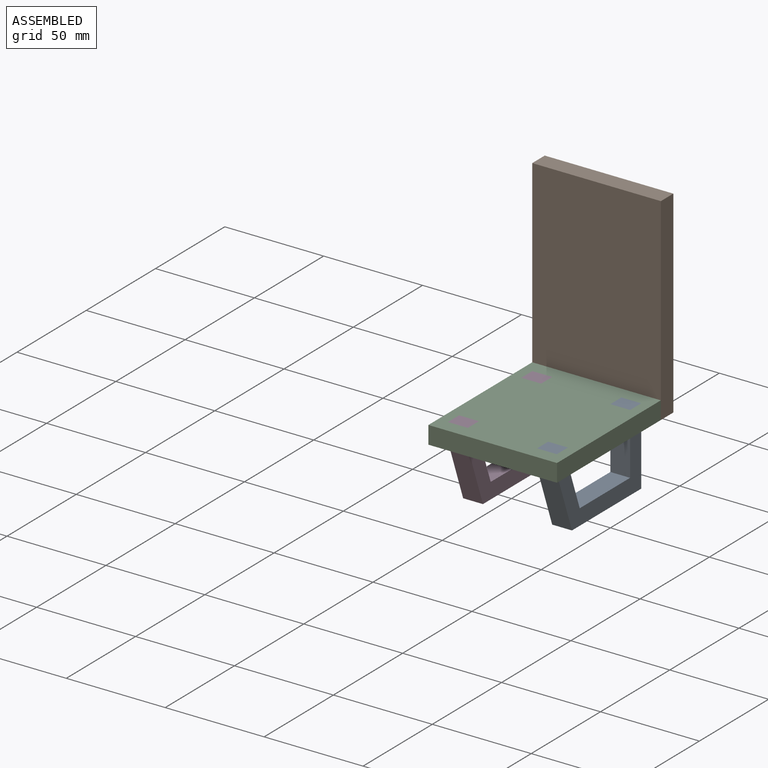
[diagram: assembled view]
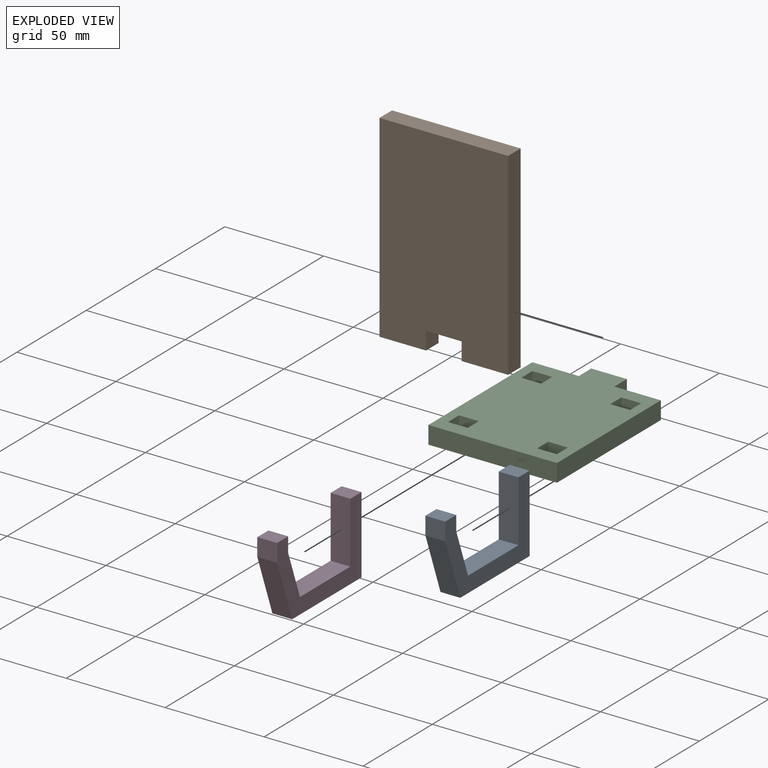
[diagram: exploded view]
GUIDED TOUR — MATED ASSEMBLY (Onshape document 2998f35b9160b1eeeda3995d, AutoMate assembly 2998f35b9160b1eeeda3995d_2a96d878df0ba6bce4009664_ebf144e67953d812271a2c66_default)

This assembly has 4 components, labeled P0..P3 below (a component is one placed occurrence of a part; the same part can appear more than once), held together by 3 mates. A mate is a constraint between two components; its type names the relative motion it leaves free:
  FASTENED — locks the two components together rigidly (no relative motion).
Axis/direction vectors are unit vectors and 'through' points are millimeter coordinates, both in the assembly's world frame.

MATES
  1. FASTENED "Fastened 3": P3 <-> P2, direction (0.000, -1.000, 0.000) through (41.55, -26.61, -37.66) mm
  2. FASTENED "Fastened 1": P2 <-> P1, direction (1.000, 0.000, 0.000) through (73.05, 45.85, -42.16) mm
  3. FASTENED "Fastened 2": P2 <-> P0, direction (0.000, 1.000, 0.000) through (86.55, -26.61, -37.66) mm

ASSEMBLY ORDER
  1. P2 — the base component [order heuristic]
  2. P0 — core [order heuristic]
  3. P3 — core [order heuristic]
  4. P1 [order verified]
Order-tag legend:
  [order verified] — this step's position reverses a verified removal order: the component was checked to insert without passing through the ones already placed.
  [order heuristic] — the first 3 components form the assembly's core: parts whose collision-free extraction could not be verified, listed in mate-graph order.

Of the 4 components, 4 carry the full construction recipe — the FeatureScript program that regenerates the part's solid from scratch; the rest are supplied as boundary geometry only.
Each toured component is shown spotlighted twice — in the assembled view, then in the exploded view, where a leader line traces a displaced component back to its assembled socket (saturated green if recipe-attached, orange if geometry-only; every other component desaturated gray) — followed by its recipe or geometry summary and the mates that hold it.
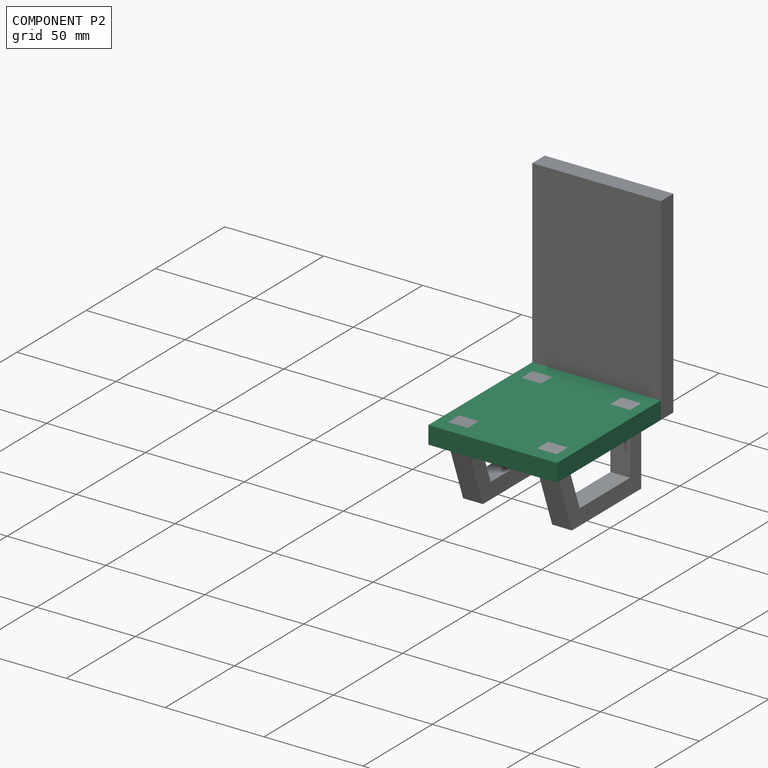
[diagram: component P2 — assembled]
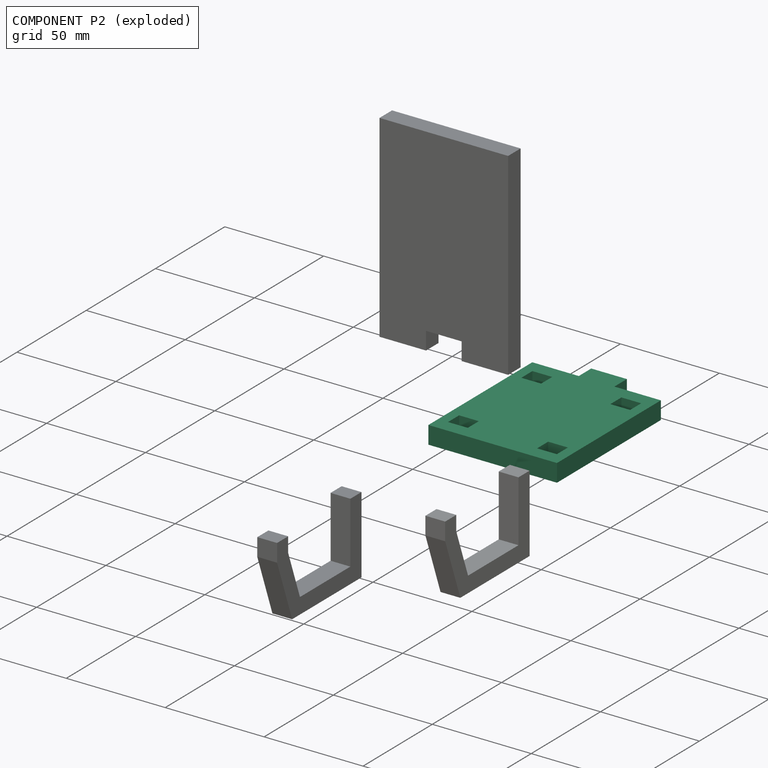
[diagram: component P2 — exploded]
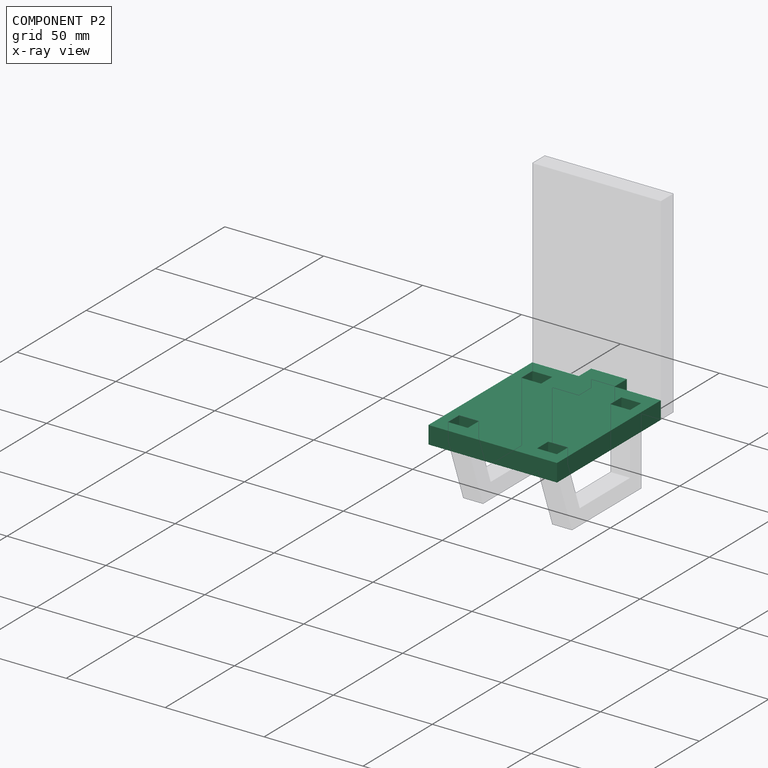
[diagram: component P2 — x-ray view]
COMPONENT P2 — recipe-attached (CADFS 00386693, mesh-verified: the recipe's output STEP matches this component's geometry to below the mesh-comparison resolution (tessellation chordal tolerance ~0.16 mm)).
Held by: FASTENED mate "Fastened 3" to P3; FASTENED mate "Fastened 1" to P1; FASTENED mate "Fastened 2" to P0.
Construction recipe (FeatureScript — the CAD program that rebuilds this solid; sketch coordinates are in the units given by the * unit suffixes, e.g. mm):

FeatureScript 1511;
import(path : "onshape/std/geometry.fs", version : "1511.0");
import(path : "onshape/std/common.fs", version : "1511.0");
const mm = millimeter;
const VERTEX = EntityType.VERTEX;
const EDGE = EntityType.EDGE;
const FACE = EntityType.FACE;
const BODY = EntityType.BODY;
function v(x, y){return vector(x, y);}
function OD(order){return orderDisambiguation(order);}
function OSD(set){return originalSetDisambiguation(set);}
function TD(topology){return topologyDisambiguation(topology);}
function TDD(query){return trueDependencyDisambiguation(query);}
function sQuery(a, b, c) {return sketchEntityQuery(a, b, c);}

annotation { "Feature Type Name" : "Feature", "Feature Type Description" : "" }
export const myFeature = defineFeature(function(context is Context, id is Id, definition is map)
    precondition{}
    {
        {
            var Q0;
            Q0=qCreatedBy(makeId("Top.planeOp"),FACE);
            var sketch = newSketch(context, id + "F0", { "sketchPlane" : qUnion([Q0])});
            skLineSegment(sketch, "E0.bottom", {"start": v(-32.5, 37.5) * mm, "end": v(32.5, 37.5) * mm});
            skLineSegment(sketch, "E0.top", {"start": v(-32.5, -37.5) * mm, "end": v(32.5, -37.5) * mm});
            skLineSegment(sketch, "E0.left", {"start": v(-32.5, 37.5) * mm, "end": v(-32.5, -37.5) * mm});
            skLineSegment(sketch, "E0.right", {"start": v(32.5, 37.5) * mm, "end": v(32.5, -37.5) * mm});
            skPoint(sketch, "E0.middle", {"position": v(0, 0) * mm});
            skSolve(sketch);
        }
        {
            var Q0;
            Q0 = qSketchRegion(id + "F0", true);
            extrude(context, id + "F1", {"entities" : qUnion([Q0]), "depth" : 9 * mm});
        }
        {
            var Q0;
            Q0=makeQuery(id+"F1.opExtrude","CAP_FACE",FACE,{"disambiguationData":[OSD([sQuery(id+"F0.wireOp",EDGE,"E0.bottom"),sQuery(id+"F0.wireOp",EDGE,"E0.top"),sQuery(id+"F0.wireOp",EDGE,"E0.left"),sQuery(id+"F0.wireOp",EDGE,"E0.right")])],"isStart":false});
            var sketch = newSketch(context, id + "F2", { "sketchPlane" : qUnion([Q0])});
            skLineSegment(sketch, "E1", {"start": v(0, 37.5) * mm, "end": v(0, 46.5) * mm, "construction": true});
            skLineSegment(sketch, "E2", {"start": v(0, 46.5) * mm, "end": v(9, 46.5) * mm});
            skLineSegment(sketch, "E3", {"start": v(9, 46.5) * mm, "end": v(9, 37.5) * mm});
            skLineSegment(sketch, "E4", {"start": v(9, 37.5) * mm, "end": v(0, 37.5) * mm});
            skLineSegment(sketch, "E5.MirrorCS", {"start": v(0, 46.5) * mm, "end": v(-9, 46.5) * mm});
            skLineSegment(sketch, "E6.MirrorCS", {"start": v(-9, 46.5) * mm, "end": v(-9, 37.5) * mm});
            skLineSegment(sketch, "E7.MirrorCS", {"start": v(-9, 37.5) * mm, "end": v(0, 37.5) * mm});
            skSolve(sketch);
        }
        {
            var Q0;
            Q0 = qSketchRegion(id + "F2", true);
            var Q1;
            Q1=makeQuery(id+"F1.opExtrude","CAP_FACE",FACE,{"disambiguationData":[OSD([sQuery(id+"F0.wireOp",EDGE,"E0.bottom"),sQuery(id+"F0.wireOp",EDGE,"E0.top"),sQuery(id+"F0.wireOp",EDGE,"E0.left"),sQuery(id+"F0.wireOp",EDGE,"E0.right")])],"isStart":true});
            extrude(context, id + "F3", {"entities" : qUnion([Q0]), "operationType" : NewBodyOperationType.ADD, "endBound" : BoundingType.UP_TO_SURFACE, "oppositeDirection" : true, "endBoundEntityFace" : qUnion([Q1]), "depth" : 25 * mm});
        }
        {
            var Q0;
            Q0=makeQuery(id+"F3.boolean.opBoolean","MERGE",FACE,{"derivedFrom":[makeQuery(id+"F1.opExtrude","CAP_FACE",FACE,{"disambiguationData":[OSD([sQuery(id+"F0.wireOp",EDGE,"E0.bottom"),sQuery(id+"F0.wireOp",EDGE,"E0.top"),sQuery(id+"F0.wireOp",EDGE,"E0.left"),sQuery(id+"F0.wireOp",EDGE,"E0.right")])],"isStart":false}),makeQuery(id+"F3.opExtrude","CAP_FACE",FACE,{"disambiguationData":[OSD([sQuery(id+"F2.wireOp",EDGE,"E2"),sQuery(id+"F2.wireOp",EDGE,"E3"),sQuery(id+"F2.wireOp",EDGE,"E4"),sQuery(id+"F2.wireOp",EDGE,"E5.MirrorCS"),sQuery(id+"F2.wireOp",EDGE,"E6.MirrorCS"),sQuery(id+"F2.wireOp",EDGE,"E7.MirrorCS")])],"isStart":true})]});
            var sketch = newSketch(context, id + "F4", { "sketchPlane" : qUnion([Q0])});
            skLineSegment(sketch, "E8", {"start": v(-32.5, 0) * mm, "end": v(-27.5, 0) * mm, "construction": true});
            skLineSegment(sketch, "E9", {"start": v(-27.5, 0) * mm, "end": v(-27.5, 30.46) * mm, "construction": true});
            skLineSegment(sketch, "E10.bottom", {"start": v(-27.5, 30.46) * mm, "end": v(-17.5, 30.46) * mm});
            skLineSegment(sketch, "E10.top", {"start": v(-27.5, 22.46) * mm, "end": v(-17.5, 22.46) * mm});
            skLineSegment(sketch, "E10.left", {"start": v(-27.5, 30.46) * mm, "end": v(-27.5, 22.46) * mm});
            skLineSegment(sketch, "E10.right", {"start": v(-17.5, 30.46) * mm, "end": v(-17.5, 22.46) * mm});
            skLineSegment(sketch, "E11", {"start": v(0, 37.32) * mm, "end": v(0, 0) * mm, "construction": true});
            skLineSegment(sketch, "E12", {"start": v(0, 0) * mm, "end": v(32.5, 0) * mm, "construction": true});
            skLineSegment(sketch, "E13.MirrorCS", {"start": v(27.5, 30.46) * mm, "end": v(17.5, 30.46) * mm});
            skLineSegment(sketch, "E14.MirrorCS", {"start": v(17.5, 30.46) * mm, "end": v(17.5, 22.46) * mm});
            skLineSegment(sketch, "E15.MirrorCS", {"start": v(27.5, 22.46) * mm, "end": v(17.5, 22.46) * mm});
            skLineSegment(sketch, "E16.MirrorCS", {"start": v(27.5, 0) * mm, "end": v(27.5, 30.46) * mm, "construction": true});
            skLineSegment(sketch, "E17.MirrorCS", {"start": v(27.5, -22.46) * mm, "end": v(17.5, -22.46) * mm});
            skLineSegment(sketch, "E18.MirrorCS", {"start": v(17.5, -30.46) * mm, "end": v(17.5, -22.46) * mm});
            skLineSegment(sketch, "E19.MirrorCS", {"start": v(27.5, -30.46) * mm, "end": v(17.5, -30.46) * mm});
            skLineSegment(sketch, "E20.MirrorCS", {"start": v(27.5, 0) * mm, "end": v(27.5, -30.46) * mm, "construction": true});
            skLineSegment(sketch, "E21.MirrorCS", {"start": v(-27.5, -22.46) * mm, "end": v(-17.5, -22.46) * mm});
            skLineSegment(sketch, "E22.MirrorCS", {"start": v(-17.5, -30.46) * mm, "end": v(-17.5, -22.46) * mm});
            skLineSegment(sketch, "E23.MirrorCS", {"start": v(-27.5, -30.46) * mm, "end": v(-17.5, -30.46) * mm});
            skLineSegment(sketch, "E24.MirrorCS", {"start": v(-27.5, 0) * mm, "end": v(-27.5, -30.46) * mm, "construction": true});
            skLineSegment(sketch, "E25", {"start": v(27.5, 30.46) * mm, "end": v(27.5, 22.46) * mm});
            skLineSegment(sketch, "E26", {"start": v(27.5, -22.46) * mm, "end": v(27.5, -30.46) * mm});
            skLineSegment(sketch, "E27", {"start": v(-27.5, -22.46) * mm, "end": v(-27.5, -30.46) * mm});
            skSolve(sketch);
        }
        {
            var Q0;
            Q0 = qSketchRegion(id + "F4", true);
            extrude(context, id + "F5", {"entities" : qUnion([Q0]), "operationType" : NewBodyOperationType.REMOVE, "endBound" : BoundingType.THROUGH_ALL, "oppositeDirection" : true, "depth" : 25 * mm});
        }
    });
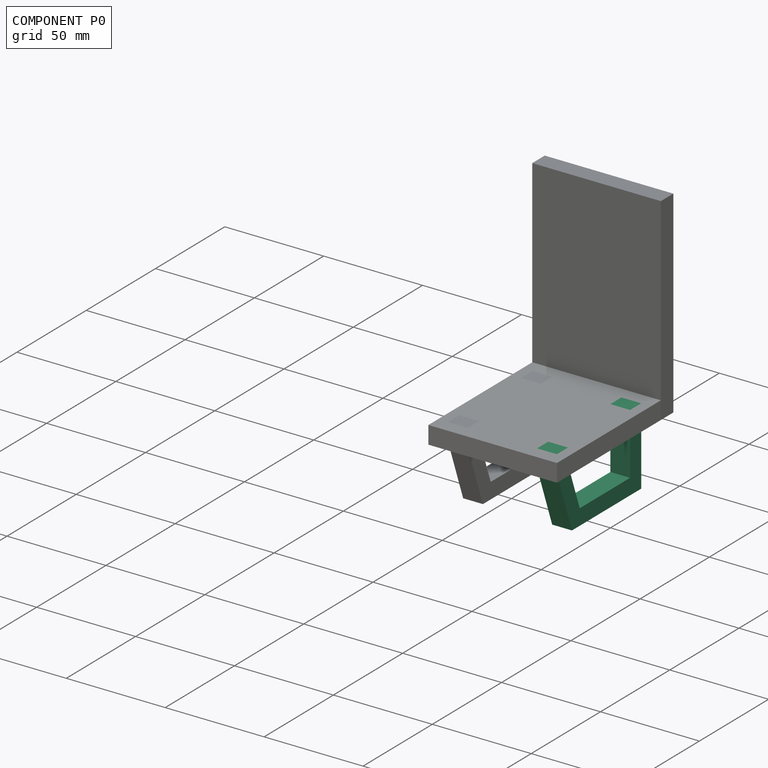
[diagram: component P0 — assembled]
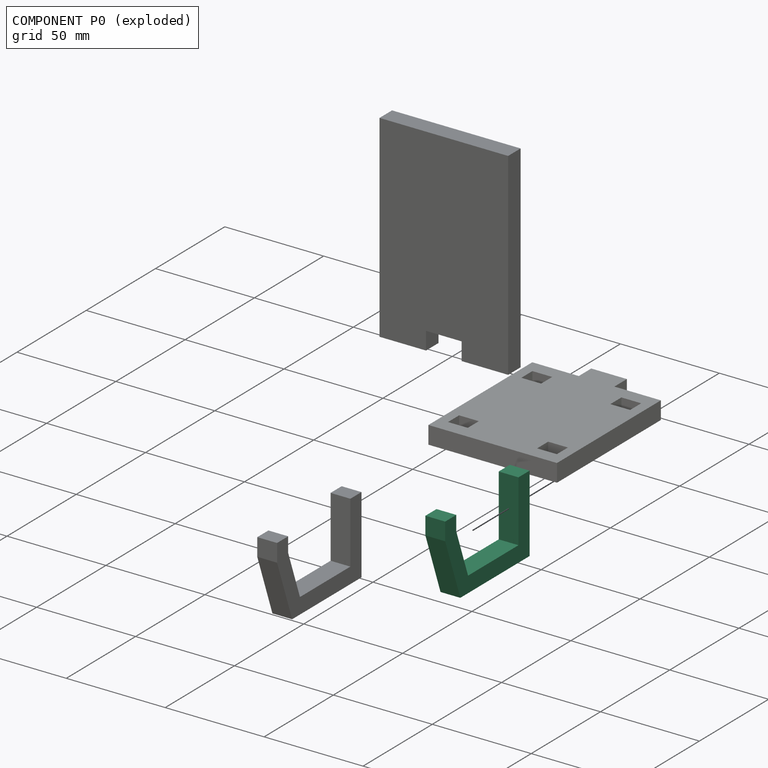
[diagram: component P0 — exploded]
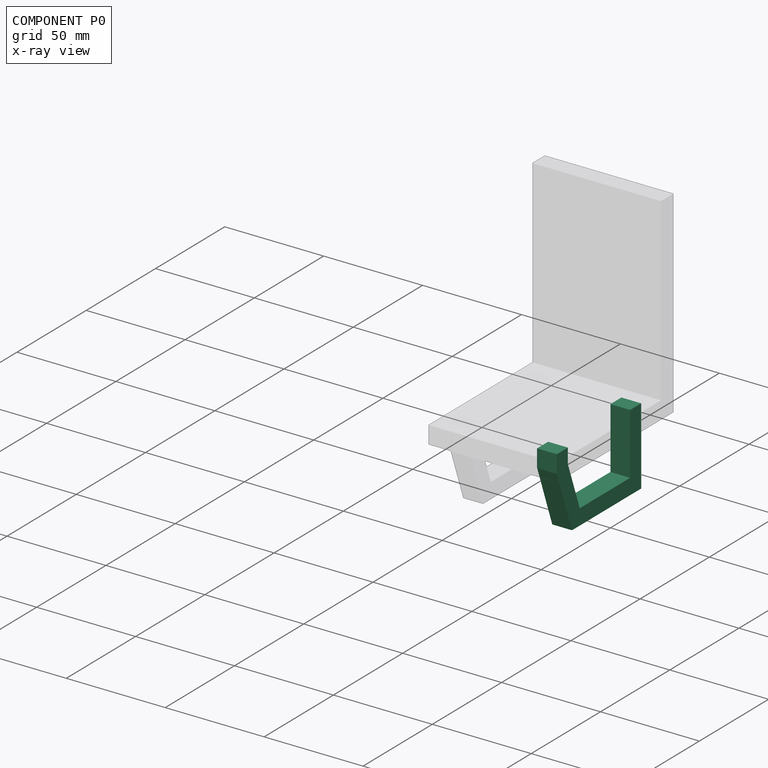
[diagram: component P0 — x-ray view]
COMPONENT P0 — recipe-attached (CADFS 00386694, mesh-verified: the recipe's output STEP matches this component's geometry to below the mesh-comparison resolution (tessellation chordal tolerance ~0.11 mm)).
Held by: FASTENED mate "Fastened 2" to P2.
Construction recipe (FeatureScript — the CAD program that rebuilds this solid; sketch coordinates are in the units given by the * unit suffixes, e.g. mm):

FeatureScript 1511;
import(path : "onshape/std/geometry.fs", version : "1511.0");
import(path : "onshape/std/common.fs", version : "1511.0");
const mm = millimeter;
const VERTEX = EntityType.VERTEX;
const EDGE = EntityType.EDGE;
const FACE = EntityType.FACE;
const BODY = EntityType.BODY;
function v(x, y){return vector(x, y);}
function OD(order){return orderDisambiguation(order);}
function OSD(set){return originalSetDisambiguation(set);}
function TD(topology){return topologyDisambiguation(topology);}
function TDD(query){return trueDependencyDisambiguation(query);}
function sQuery(a, b, c) {return sketchEntityQuery(a, b, c);}

annotation { "Feature Type Name" : "Feature", "Feature Type Description" : "" }
export const myFeature = defineFeature(function(context is Context, id is Id, definition is map)
    precondition{}
    {
        {
            var Q0;
            Q0=qCreatedBy(makeId("Right.planeOp"),FACE);
            var sketch = newSketch(context, id + "F0", { "sketchPlane" : qUnion([Q0])});
            skLineSegment(sketch, "E0", {"start": v(0, 0) * mm, "end": v(0, -30) * mm});
            skLineSegment(sketch, "E1", {"start": v(0, -30) * mm, "end": v(50, -30) * mm});
            skPoint(sketch, "E2.end.orphan", {"position": v(50, 0) * mm});
            skLineSegment(sketch, "E3", {"start": v(50, -30) * mm, "end": v(57.76, -8.67) * mm});
            skLineSegment(sketch, "E4", {"start": v(57.76, -8.67) * mm, "end": v(60.92, 0) * mm});
            skLineSegment(sketch, "E5", {"start": v(60.92, 0) * mm, "end": v(60.92, 9) * mm});
            skLineSegment(sketch, "E6", {"start": v(0, 0) * mm, "end": v(0, 9) * mm});
            skLineSegment(sketch, "E7.0", {"start": v(52.92, 1.41) * mm, "end": v(52.92, 9) * mm});
            skLineSegment(sketch, "E7.1", {"start": v(50.25, -5.93) * mm, "end": v(52.92, 1.41) * mm});
            skLineSegment(sketch, "E7.2", {"start": v(8, 0) * mm, "end": v(8, 9) * mm});
            skLineSegment(sketch, "E7.3", {"start": v(8, 0) * mm, "end": v(8, -22) * mm});
            skLineSegment(sketch, "E7.4", {"start": v(8, -22) * mm, "end": v(44.4, -22) * mm});
            skLineSegment(sketch, "E7.5", {"start": v(44.4, -22) * mm, "end": v(50.25, -5.93) * mm});
            skLineSegment(sketch, "E8", {"start": v(0, 9) * mm, "end": v(8, 9) * mm});
            skLineSegment(sketch, "E9", {"start": v(52.92, 9) * mm, "end": v(60.92, 9) * mm});
            skLineSegment(sketch, "E10", {"start": v(0, 9) * mm, "end": v(60.92, 9) * mm, "construction": true});
            skSolve(sketch);
        }
        {
            var Q0;
            Q0 = qSketchRegion(id + "F0", true);
            extrude(context, id + "F1", {"entities" : qUnion([Q0]), "depth" : 10 * mm});
        }
    });
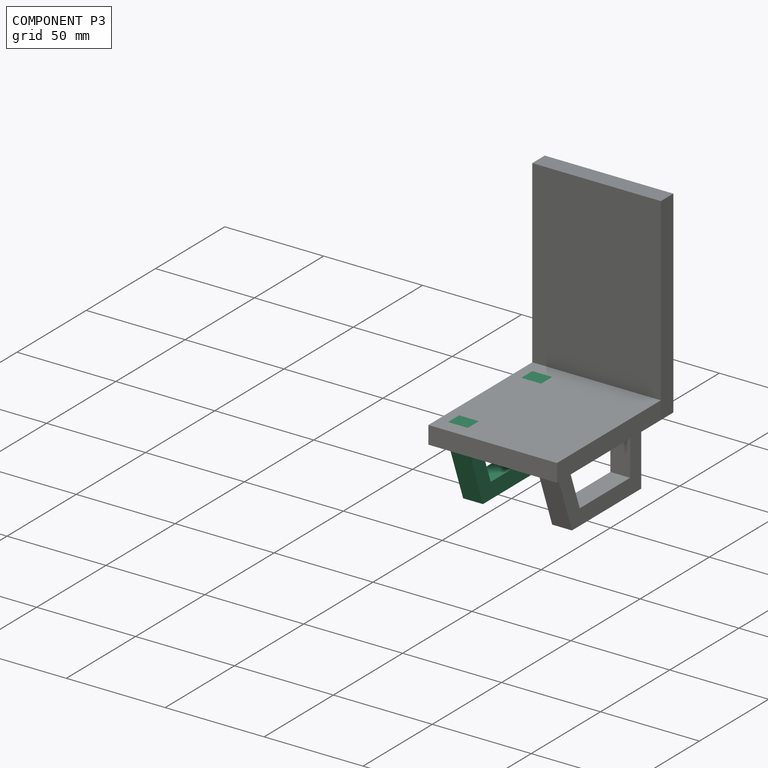
[diagram: component P3 — assembled]
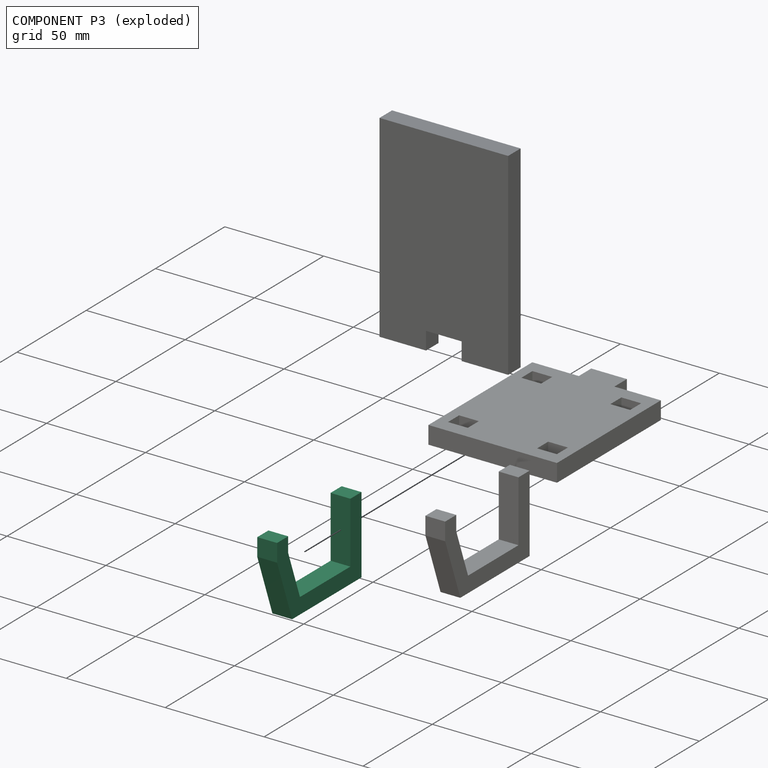
[diagram: component P3 — exploded]
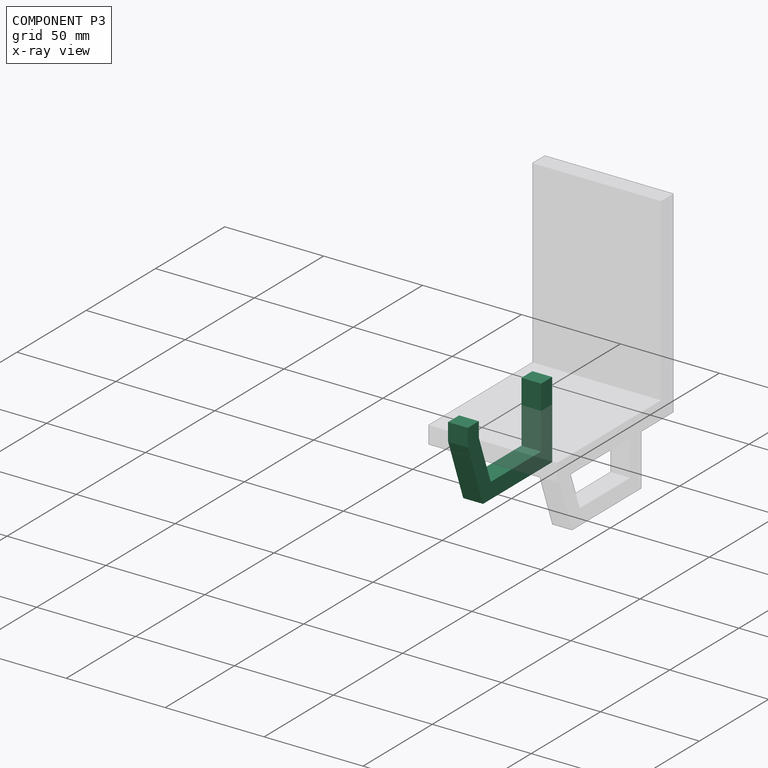
[diagram: component P3 — x-ray view]
COMPONENT P3 — same part as P0 (CADFS 00386694); its construction recipe is shown at P0.
Held by: FASTENED mate "Fastened 3" to P2.
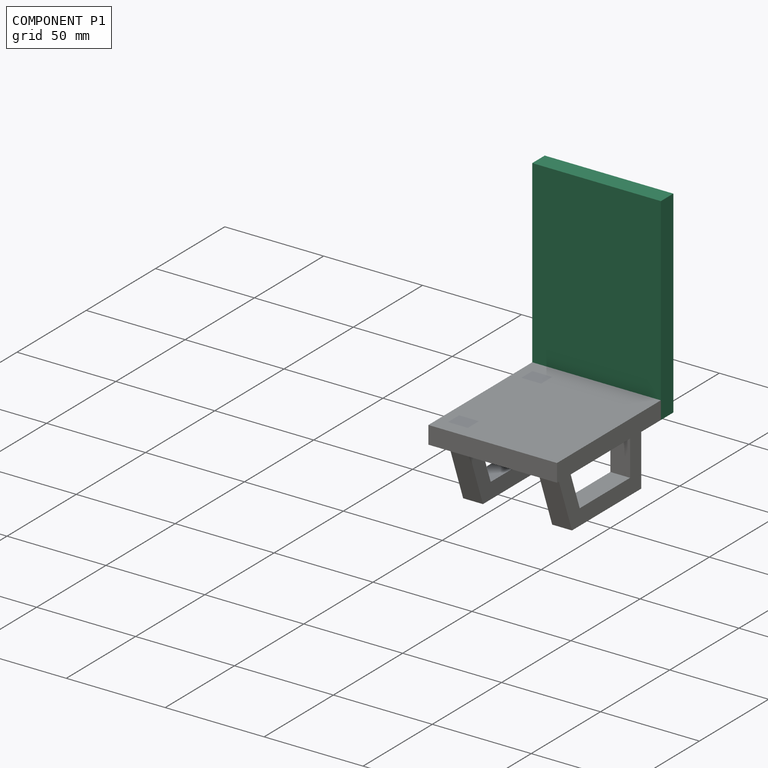
[diagram: component P1 — assembled]
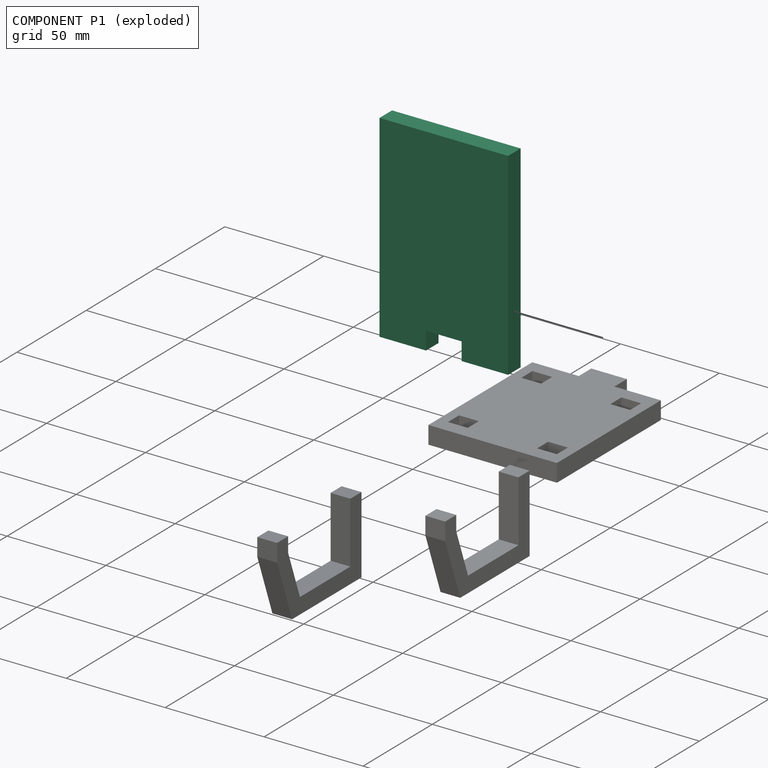
[diagram: component P1 — exploded]
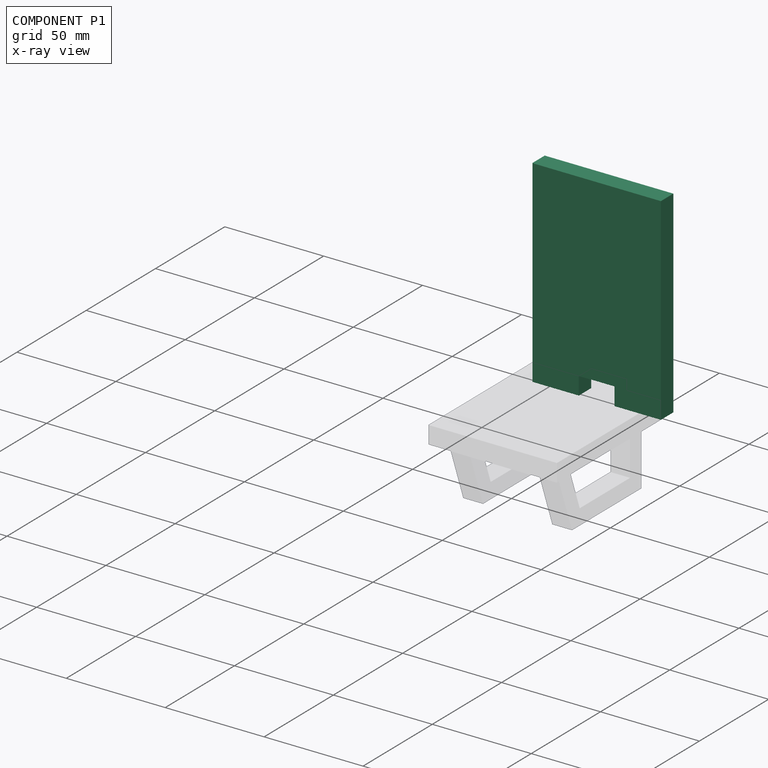
[diagram: component P1 — x-ray view]
COMPONENT P1 — recipe-attached (CADFS 00386692, mesh-verified: the recipe's output STEP matches this component's geometry to below the mesh-comparison resolution (tessellation chordal tolerance ~0.179 mm)).
Held by: FASTENED mate "Fastened 1" to P2.
Construction recipe (FeatureScript — the CAD program that rebuilds this solid; sketch coordinates are in the units given by the * unit suffixes, e.g. mm):

FeatureScript 1511;
import(path : "onshape/std/geometry.fs", version : "1511.0");
import(path : "onshape/std/common.fs", version : "1511.0");
const mm = millimeter;
const VERTEX = EntityType.VERTEX;
const EDGE = EntityType.EDGE;
const FACE = EntityType.FACE;
const BODY = EntityType.BODY;
function v(x, y){return vector(x, y);}
function OD(order){return orderDisambiguation(order);}
function OSD(set){return originalSetDisambiguation(set);}
function TD(topology){return topologyDisambiguation(topology);}
function TDD(query){return trueDependencyDisambiguation(query);}
function sQuery(a, b, c) {return sketchEntityQuery(a, b, c);}

annotation { "Feature Type Name" : "Feature", "Feature Type Description" : "" }
export const myFeature = defineFeature(function(context is Context, id is Id, definition is map)
    precondition{}
    {
        {
            var Q0;
            Q0=qCreatedBy(makeId("Front.planeOp"),FACE);
            var sketch = newSketch(context, id + "F0", { "sketchPlane" : qUnion([Q0])});
            skLineSegment(sketch, "E0.bottom", {"start": v(-32.5, 50) * mm, "end": v(32.5, 50) * mm});
            skLineSegment(sketch, "E0.top", {"start": v(-32.5, -50) * mm, "end": v(32.5, -50) * mm});
            skLineSegment(sketch, "E0.left", {"start": v(-32.5, 50) * mm, "end": v(-32.5, -50) * mm});
            skLineSegment(sketch, "E0.right", {"start": v(32.5, 50) * mm, "end": v(32.5, -50) * mm});
            skPoint(sketch, "E0.middle", {"position": v(0, 0) * mm});
            skSolve(sketch);
        }
        {
            var Q0;
            Q0 = qSketchRegion(id + "F0", true);
            extrude(context, id + "F1", {"entities" : qUnion([Q0]), "depth" : 9 * mm});
        }
        {
            var Q0;
            Q0=makeQuery(id+"F1.opExtrude","CAP_FACE",FACE,{"disambiguationData":[OSD([sQuery(id+"F0.wireOp",EDGE,"E0.bottom"),sQuery(id+"F0.wireOp",EDGE,"E0.top"),sQuery(id+"F0.wireOp",EDGE,"E0.left"),sQuery(id+"F0.wireOp",EDGE,"E0.right")])],"isStart":false});
            var sketch = newSketch(context, id + "F2", { "sketchPlane" : qUnion([Q0])});
            skLineSegment(sketch, "E1", {"start": v(0, -50) * mm, "end": v(0, -41) * mm, "construction": true});
            skPoint(sketch, "E1.endSnap0", {"position": v(0, -50) * mm});
            skLineSegment(sketch, "E2", {"start": v(0, -41) * mm, "end": v(9, -41) * mm});
            skLineSegment(sketch, "E3", {"start": v(9, -41) * mm, "end": v(9, -50) * mm});
            skLineSegment(sketch, "E4", {"start": v(9, -50) * mm, "end": v(0, -50) * mm});
            skLineSegment(sketch, "E5.MirrorCS", {"start": v(0, -41) * mm, "end": v(-9, -41) * mm});
            skLineSegment(sketch, "E6.MirrorCS", {"start": v(-9, -41) * mm, "end": v(-9, -50) * mm});
            skLineSegment(sketch, "E7.MirrorCS", {"start": v(-9, -50) * mm, "end": v(0, -50) * mm});
            skSolve(sketch);
        }
        {
            var Q0;
            Q0=makeQuery(id+"F2.imprint","IMPRINT",FACE,{"disambiguationData":[TD([[makeQuery(id+"F2.imprint","IMPRINT",EDGE,{"derivedFrom":sQuery(id+"F2.wireOp",EDGE,"E2")}),-1.0]])]});
            extrude(context, id + "F3", {"entities" : qUnion([Q0]), "operationType" : NewBodyOperationType.REMOVE, "endBound" : BoundingType.THROUGH_ALL, "oppositeDirection" : true, "depth" : 25 * mm});
        }
    });
PROVENANCE & LICENSES
Assembly (occurrences, transforms, mates, per-part STEP geometry): AutoMate dataset, Zenodo record 7776208, CC0.
Construction recipes: CADFS (HuggingFace VladPyatov/CADFS, CC-BY-4.0, layered over the ABC dataset), FeatureScript reconstruction programs keyed by ABC model id.
Join: ABC meta listings map ABC model id -> Onshape documentId; within a shared document, parts are matched by geometric signature (bounding-box dims + volume at 0.1% relative tolerance, exact B-rep face/solid counts).
Verification: 4 of this assembly's 4 components carry a recipe attachment, and every attachment is mesh-verified: the CADFS STEP and the AutoMate member STEP were compared as meshes in their shared local frame (symmetric sampled-point-to-mesh distance); worst across the 4 attachments: below the mesh-comparison resolution (tessellation chordal tolerance ~0.179 mm) on a 120 mm part.
Renders: orthographic iso camera (az 35 / el 25); the floor grid conveys scale (grid pitch printed in each image; no ruler). In the exploded view each component is displaced by its stored offset vector: the offsets alone carry the explosion direction (mate normal/axis signs are not orientation cues and do not encode it), and separation distances are assigned per mate-chain, not proportionally to assembly-order depth.
